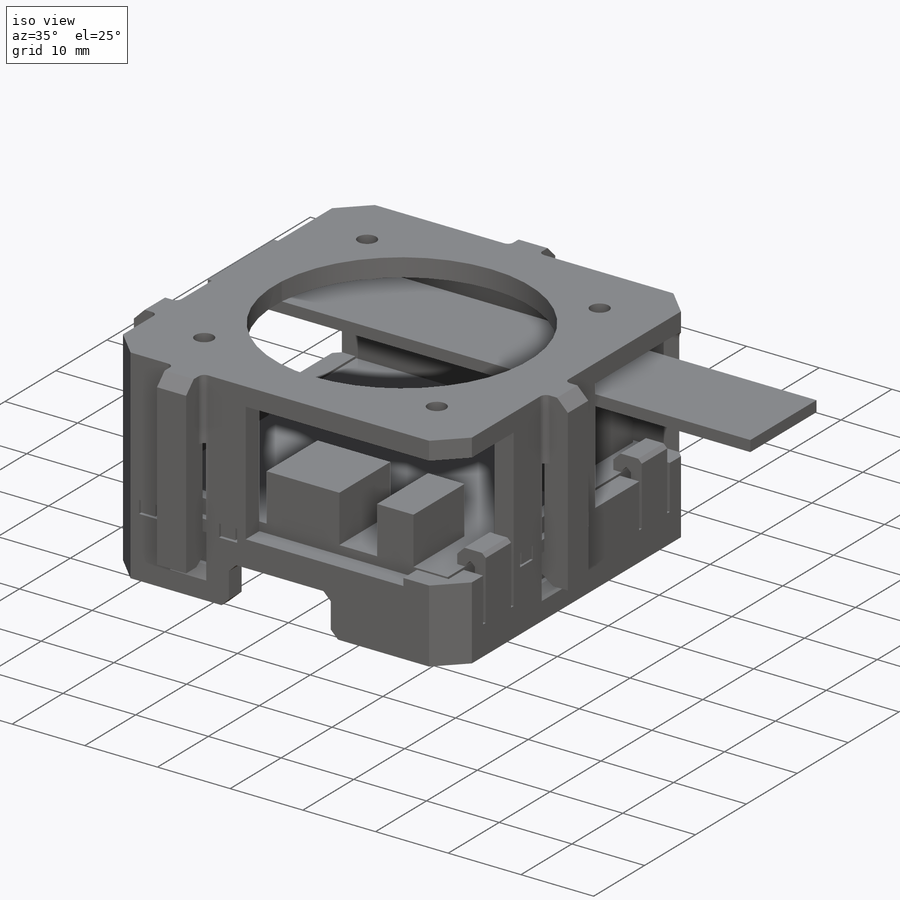
[diagram: iso view]
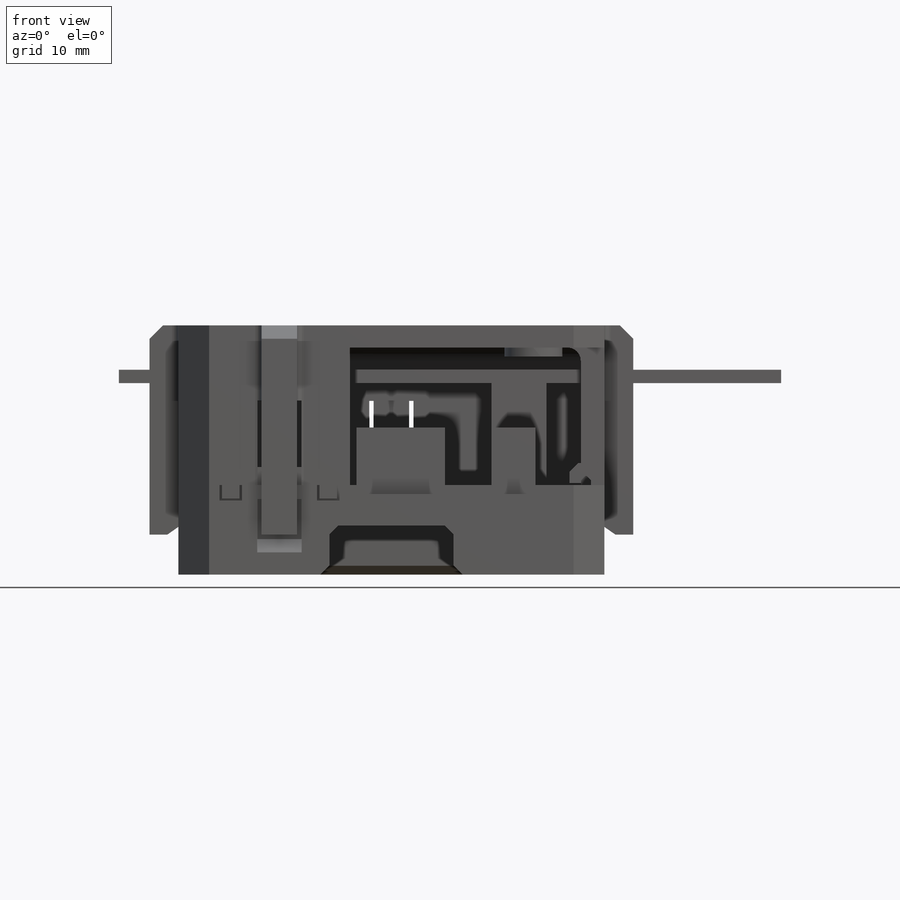
[diagram: front view]
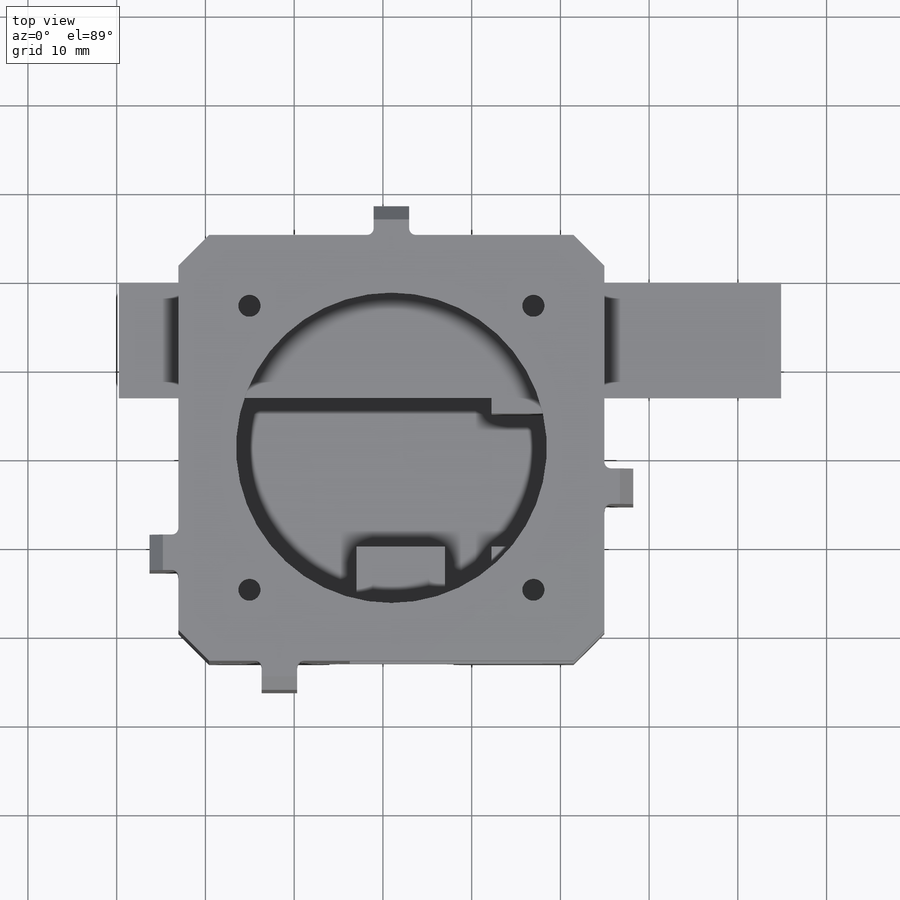
[diagram: top view]
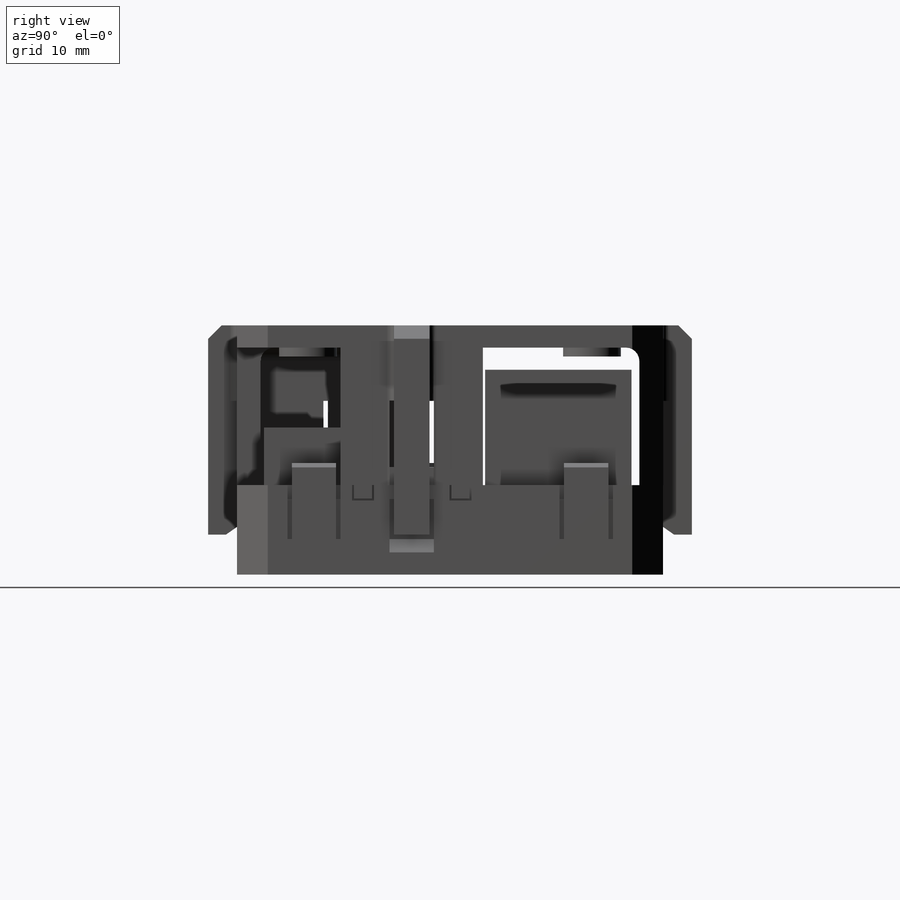
[diagram: right view]
SOLIDWORKS PART (.sldprt)
format: sldprt  version: not decoded by parser v0  size: 1,307,648 bytes
history: native  units: mm
features: sketch x31, extrude x18, cut_extrude x12, chamfer x9, plane x2, fillet x2, material x1 (+11 scaffold rows collapsed)
feature tree (86):
  scaffold x11  (default folders/planes/origin — collapsed)
  material  "Material <not specified>"
  sketch  "Sketch1"  dims[D1=41.91mm D2=41.91mm]
  extrude  "Boss-Extrude1"  Depth=1.5748mm
  plane  "Plane1"  Offset=3mm
  sketch  "Sketch3"  dims[D1=42.0mm]
  extrude  "Boss-Extrude2"  Depth=40.386mm
  chamfer  "Chamfer1"  Distance=3.5mm Angle=45deg
  sketch  "Sketch4"  dims[D1=16.5mm D2=0.5mm D3=3.5mm D4=6.2mm]
  extrude  "Boss-Extrude3"  Depth=13mm
  sketch  "Sketch5"  dims[D1=13.0mm]
  extrude  "Boss-Extrude4"  Depth=1.5mm
  sketch  "Sketch6"  dims[D1=5.0mm D2=10.0mm D3=4.7mm D4=14.9mm D5=10.0mm]
  extrude  "Boss-Extrude5"  Depth=6.5mm
  sketch  "Sketch7"  dims[c1.D1=2.0mm c2.D1=0.5mm c2.D2=2.5mm]
  extrude  "Boss-Extrude6"  Depth=5.5mm
  sketch  "Sketch11"  dims[D1=0.0mm D2=2.0mm]
  extrude  "Boss-Extrude7"  [1 undecoded]
  sketch  "Sketch12"  dims[D2=42.672mm D1=0.0mm]
  extrude  "Boss-Extrude8"  Depth=1.5748mm
  sketch  "Sketch13"  dims[c1.D1=7.0mm c1.D2=9.0mm c1.D3=1.5mm c1.D4=7.0mm c1.D5=6.0mm c2.D3=1.5mm c2.D6=1.5mm c2.D7=8.0mm c2.D8=7.5mm]
  cut_extrude  "Cut-Extrude2"  [1 undecoded]
  sketch  "Sketch14"  dims[D1=2.0mm D2=6.0mm D3=3.0mm]
  cut_extrude  "Cut-Extrude3"  Depth=4mm
  sketch  "Sketch15"  dims[D1=0.5mm D2=0.5mm D3=0.5mm D4=0.5mm]
  extrude  "Boss-Extrude9"  Depth=1mm
  sketch  "Sketch16"  dims[c1.D1=~10.094147mm c2.D1=90.0deg c3.D1=~10.094147mm c4.D1=90.0deg c5.D1=1.25mm]
  extrude  "Boss-Extrude10"  Depth=1.5mm
  sketch  "Sketch9"  dims[D1=14.0mm]
  cut_extrude  "Cut-Extrude1"  [1 undecoded]
  sketch  "Sketch18"
  cut_extrude  "Cut-Extrude4"  [1 undecoded]
  sketch  "Sketch17"  dims[D1=0.5mm D2=~0.545637mm]
  extrude  "Boss-Extrude11"  Depth=1.778mm
  chamfer  "Chamfer2"  Distance=0.5mm Angle=45deg
  chamfer  "Chamfer3"  Distance=1mm Angle=45deg
  chamfer  "Chamfer4"  Distance=1mm Angle=45deg
  chamfer  "Chamfer5"  Distance=1mm Angle=45deg
  chamfer  "Chamfer6"  Distance=0.5mm Angle=45deg
  sketch  "Sketch19"  dims[D1=1.0mm D2=0.75mm D3=0.75mm]
  cut_extrude  "Cut-Extrude5"  [1 undecoded]
  plane  "Plane2"  Offset=5mm
  sketch  "Sketch20"  dims[D2=35.0mm D3=4.2mm D1=40.0mm D4=32.0mm]
  extrude  "Boss-Extrude12"  Depth=10.5mm
  sketch  "Sketch21"  dims[D4=2.0mm D1=0.0mm D2=0.0mm D3=0.0mm]
  extrude  "Boss-Extrude13"  [1 undecoded]
  sketch  "Sketch22"  dims[D1=2.5mm]
  extrude  "Boss-Extrude14"  Depth=2.5mm
  fillet  "Fillet1"  Radius=1.5mm
  sketch  "Sketch23"  dims[D1=6.5mm]
  extrude  "Boss-Extrude15"  Depth=1mm
  sketch  "Sketch25"  dims[D1=5.0mm D2=1.0mm]
  cut_extrude  "Cut-Extrude6"  Depth=6mm
  sketch  "Sketch26"  dims[D2=1.5mm D1=0.0mm]
  cut_extrude  "Cut-Extrude7"  Depth=4mm
  chamfer  "Chamfer7"  Distance=1.5mm Angle=30deg
  sketch  "Sketch28"  dims[D1=3.25mm D2=0.5mm]
  extrude  "Boss-Extrude16"  [1 undecoded]
  sketch  "Sketch29"  dims[D1=0.5mm]
  extrude  "Boss-Extrude17"  Depth=0.5mm
  sketch  "Sketch30"  dims[D1=1.5mm]
  fillet  "Fillet3"  Radius=0.75mm
  chamfer  "Chamfer10"  Distance=1.5mm Angle=45deg
  chamfer  "Chamfer11"  Distance=3.25mm Angle=35deg
  sketch  "Sketch31"  dims[D1=2.0mm D2=4.5mm D3=4.5mm D4=4.5mm D5=10.0mm D6=0.5mm]
  extrude  "Boss-Extrude18"  Depth=1.5mm
  sketch  "Sketch32"  dims[D1=0.25mm]
  cut_extrude  "Cut-Extrude9"  Depth=1.75mm
  sketch  "Sketch33"  dims[D2=2.0mm D3=5.0mm D1=0.0mm]
  cut_extrude  "Cut-Extrude10"  [1 undecoded]
  sketch  "Sketch34"  dims[D2=2.0mm D1=0.0mm]
  cut_extrude  "Cut-Extrude11"  [1 undecoded]
  sketch  "Sketch35"  dims[D2=2.0mm D1=0.0mm]
  cut_extrude  "Cut-Extrude12"  [1 undecoded]
  sketch  "Sketch36"  dims[D2=2.0mm D1=0.0mm]
  cut_extrude  "Cut-Extrude13"  [1 undecoded]
decode coverage: 60 of 72 modeling features carry decoded parameters
note: ~ marks probable driven/reference dimensions
note: 11 parameter values undecoded
summary: no parameter record found for 11 features
note: suppression state not decoded; provenance and decode notes live in map.json
